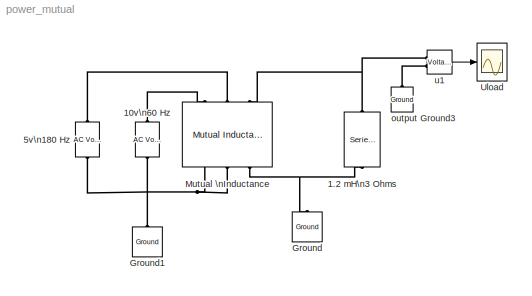
MODEL power_mutual
KIND model
BLOCK [Reference] 1.2 mH\n3 Ohms  REF=powerlib/Elements/Series RLC Branch
  AttributesFormatString = \\n
  Capacitance = inf
  Inductance = 1.2e-03
  LConnTagsString = __new0
  Measurements = None
  PhysicalDomain = powersysdomain
  PortType = p1
  Ports = [0, 0, 0, 0, 0, 1, 1]
  RConnTagsString = __new0
  Resistance = 3
  SourceBlock = powerlib/Elements/Series RLC Branch
  SourceType = Series RLC Branch
  SubClassName = unknown
BLOCK [Reference] 10v\n60 Hz  REF=powerlib/Electrical\nSources/AC Voltage Source
  Amplitude = 10
  AttributesFormatString = \\n
  Description = source block
  Frequency = 60
  Measurements = None
  Phase = 0
  Ports = [0, 0, 0, 0, 0, 1, 1]
  SampleTime = 0
  SourceBlock = powerlib/Electrical\nSources/AC Voltage Source
  SourceType = AC Voltage Source
BLOCK [Reference] 5v\n180 Hz  REF=powerlib/Electrical\nSources/AC Voltage Source
  Amplitude = 5
  AttributesFormatString = \\n
  Description = source block
  Frequency = 180
  Measurements = None
  Phase = 0
  Ports = [0, 0, 0, 0, 0, 1, 1]
  SampleTime = 0
  SourceBlock = powerlib/Electrical\nSources/AC Voltage Source
  SourceType = AC Voltage Source
BLOCK [Reference] Ground  REF=powerlib/Elements/Ground
  AttributesFormatString = \\n
  LConnTagsString = a
  PhysicalDomain = powersysdomain
  PortType = p1
  Ports = [0, 0, 0, 0, 0, 1]
  SourceBlock = powerlib/Elements/Ground
  SourceType = Ground
  SubClassName = unknown
BLOCK [Reference] Ground1  REF=powerlib/Elements/Ground
  AttributesFormatString = \\n
  LConnTagsString = a
  PhysicalDomain = powersysdomain
  PortType = p1
  Ports = [0, 0, 0, 0, 0, 1]
  SourceBlock = powerlib/Elements/Ground
  SourceType = Ground
  SubClassName = unknown
BLOCK [Reference] Mutual \nInductance  REF=powerlib/Elements/Mutual Inductance
  AttributesFormatString = \\n
  LConnTagsString = a|b|c
  Measurements = None
  MutualImpedance = [1.0 1.0e-03]
  PhysicalDomain = powersysdomain
  PortType = p1
  Ports = [0, 0, 0, 0, 0, 3, 3]
  RConnTagsString = A|B|C
  SelfImpedance1 = [1.1 1.1e-03]
  SelfImpedance2 = [ 1.1 1.1e-03]
  SelfImpedance3 = [ 1.1 1.1e-03]
  SourceBlock = powerlib/Elements/Mutual Inductance
  SourceType = Mutual Inductance
  SubClassName = unknown
  ThreeWindings = on
BLOCK [Scope] Uload
  DataFormat = Array
  NumInputPorts = 1
  Ports = [1]
  TickLabels = on
  TimeRange = 0.1
  YMax = 10
  YMin = -10
BLOCK [Reference] output Ground3  REF=powerlib/Elements/Ground
  AttributesFormatString = \\n
  LConnTagsString = a
  PhysicalDomain = powersysdomain
  PortType = p1
  Ports = [0, 0, 0, 0, 0, 1]
  SourceBlock = powerlib/Elements/Ground
  SourceType = Ground
  SubClassName = unknown
BLOCK [Reference] u1  REF=powerlib/Measurements/Voltage Measurement
  AttributesFormatString = \\n
  OutputType = Magnitude
  PSBequivalent = 0
  PhasorSimulation = off
  Ports = [0, 1, 0, 0, 0, 2]
  SourceBlock = powerlib/Measurements/Voltage Measurement
  SourceType = Voltage Measurement
  Tag = PoWeRsYsTeMmEaSuReMeNt
LINE u1:1 -> Uload:1
PNET net1: 1.2 mH\n3 Ohms:LConn1 -- Ground:LConn1 -- Mutual \nInductance:RConn3
PNET net2: 1.2 mH\n3 Ohms:RConn1 -- Mutual \nInductance:LConn3 -- u1:LConn1
PNET net3: 10v\n60 Hz:LConn1 -- 5v\n180 Hz:LConn1 -- Ground1:LConn1 -- Mutual \nInductance:RConn1 -- Mutual \nInductance:RConn2
PLINE 10v\n60 Hz:RConn1 -- Mutual \nInductance:LConn1
PLINE 5v\n180 Hz:RConn1 -- Mutual \nInductance:LConn2
PLINE output Ground3:LConn1 -- u1:LConn2
note: PNET lines group multi-terminal physical nets as a canonical sorted terminal list (undirected conserving connections); 2-terminal nets keep the pairwise PLINE form
